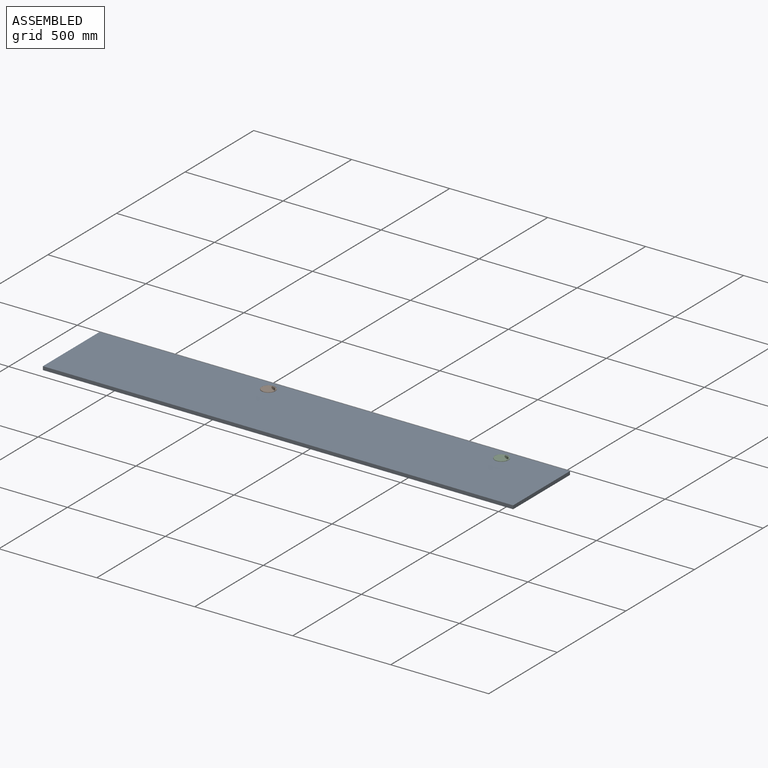
[diagram: assembled view]
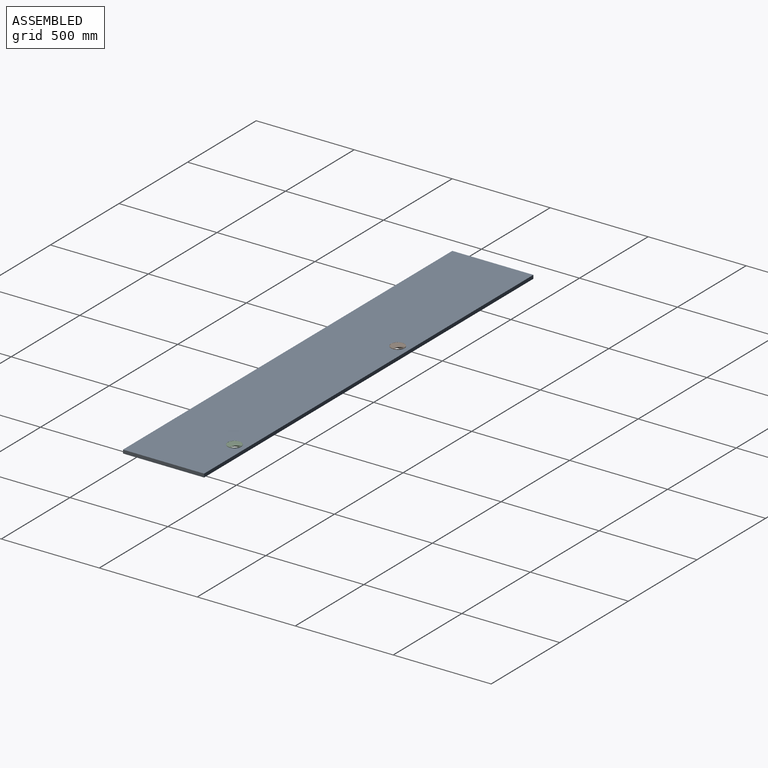
[diagram: assembled view, second angle]
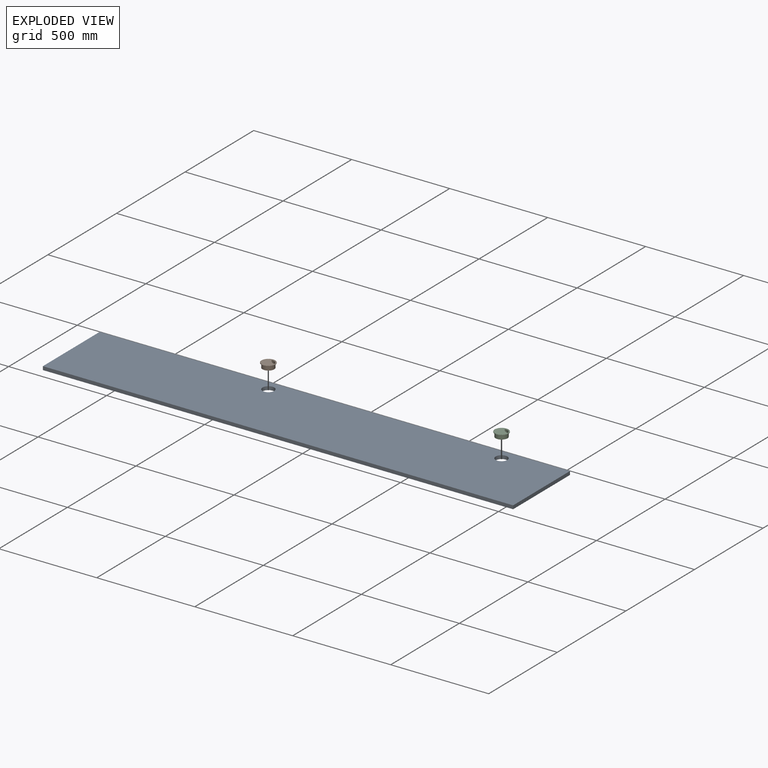
[diagram: exploded view]
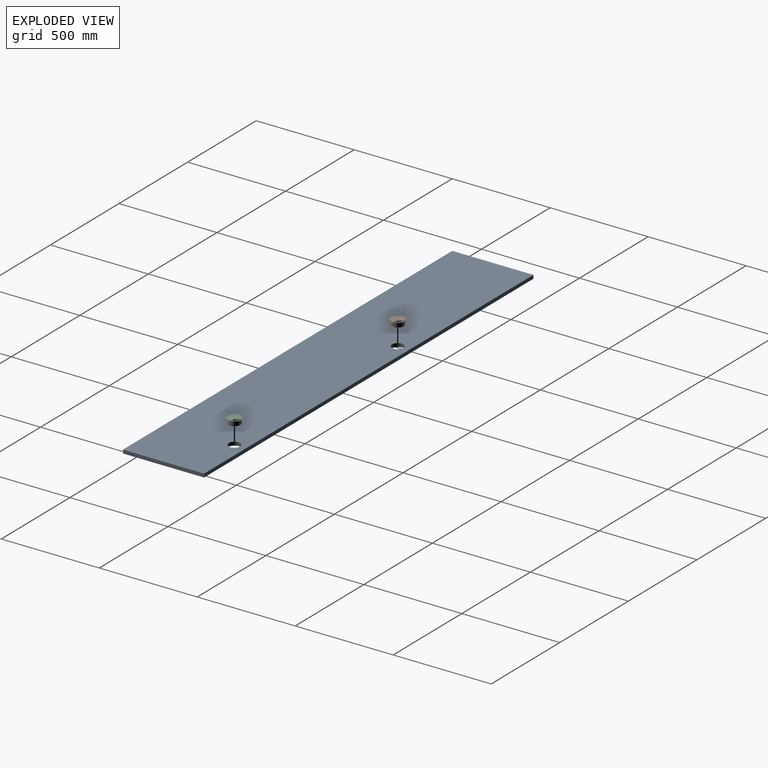
[diagram: exploded view, second angle]
ASSEMBLY  parts=3 mates=4
PART A: 8 faces, bbox 2400x414x18 mm
  f0: plane 2400x18mm, normal (0,1,0), area 43200mm2, adj f1,f5,f6,f7
  f1: plane 414x18mm, normal (-1,0,0), area 7452mm2, adj f0,f2,f6,f7
  f2: plane 2400x18mm, normal (0,-1,0), area 43200mm2, adj f1,f5,f6,f7
  f3: cylinder r=30mm len=60mm, axis (0,0,-1), area 3392.9mm2, adj f6,f7
  f4: cylinder r=30mm len=60mm, axis (0,0,-1), area 3392.9mm2, adj f6,f7
  f5: plane 414x18mm, normal (1,0,0), area 7452mm2, adj f0,f2,f6,f7
  f6: plane 2400x414mm, normal (0,0,1), area 987945.1mm2, adj f0,f1,f2,f3,f4,f5
  f7: plane 2400x414mm, normal (0,0,-1), area 987945.1mm2, adj f0,f1,f2,f3,f4,f5
PART B: 12 faces, bbox 70x70x24 mm
  f0: plane 68x68mm, normal (0,0,1), area 330.3mm2, adj f4,f7,f9,f10
  f1: cylinder r=35mm len=70mm, axis (0,0,-1), area 439.8mm2, adj f2,f3
  f2: plane 70x70mm, normal (0,0,1), area 216.8mm2, adj f1,f7
  f3: plane 70x70mm, normal (0,0,-1), area 1021mm2, adj f1,f5
  f4: cylinder r=29mm len=58mm, axis (0,0,1), area 4190.9mm2, adj f0,f6,f8
  f5: cylinder r=30mm len=60mm, axis (0,0,1), area 4146.9mm2, adj f3,f6
  f6: plane 60x60mm, normal (0,0,-1), area 185.4mm2, adj f4,f5
  f7: cylinder r=34mm len=68mm, axis (0,0,1), area 213.6mm2, adj f0,f2
  f8: plane 58x57.94mm, normal (0,0,-1), area 2236.5mm2, adj f4,f10
  f9: cylinder r=33.5mm len=67mm, axis (0,0,1), area 156.5mm2, adj f0,f10,f11
  f10: cylinder r=38.08mm len=36.4mm, axis (0,0,1), area 52.4mm2, adj f0,f8,f9,f11
  f11: plane 67x66.87mm, normal (0,0,1), area 2895.8mm2, adj f9,f10
PART C: same geometry as B
PLACE A t=(-612.81,206.96,-840.51)mm
PLACE B t=(-886.23,323.58,-822.51)mm
PLACE C t=(303.77,323.58,-822.51)mm
MATE slider B.f1 <-> A.f3  axis (0,0,1) through (-909.81,335.96,-844.51)mm
MATE planar B.f1 <-> A.f3  axis (0,0,-1) through (-909.81,335.96,-822.51)mm
MATE slider C.f1 <-> A.f4  axis (0,0,-1) through (280.19,335.96,-844.51)mm
MATE planar C.f1 <-> A.f4  axis (0,0,-1) through (280.19,335.96,-822.51)mm
